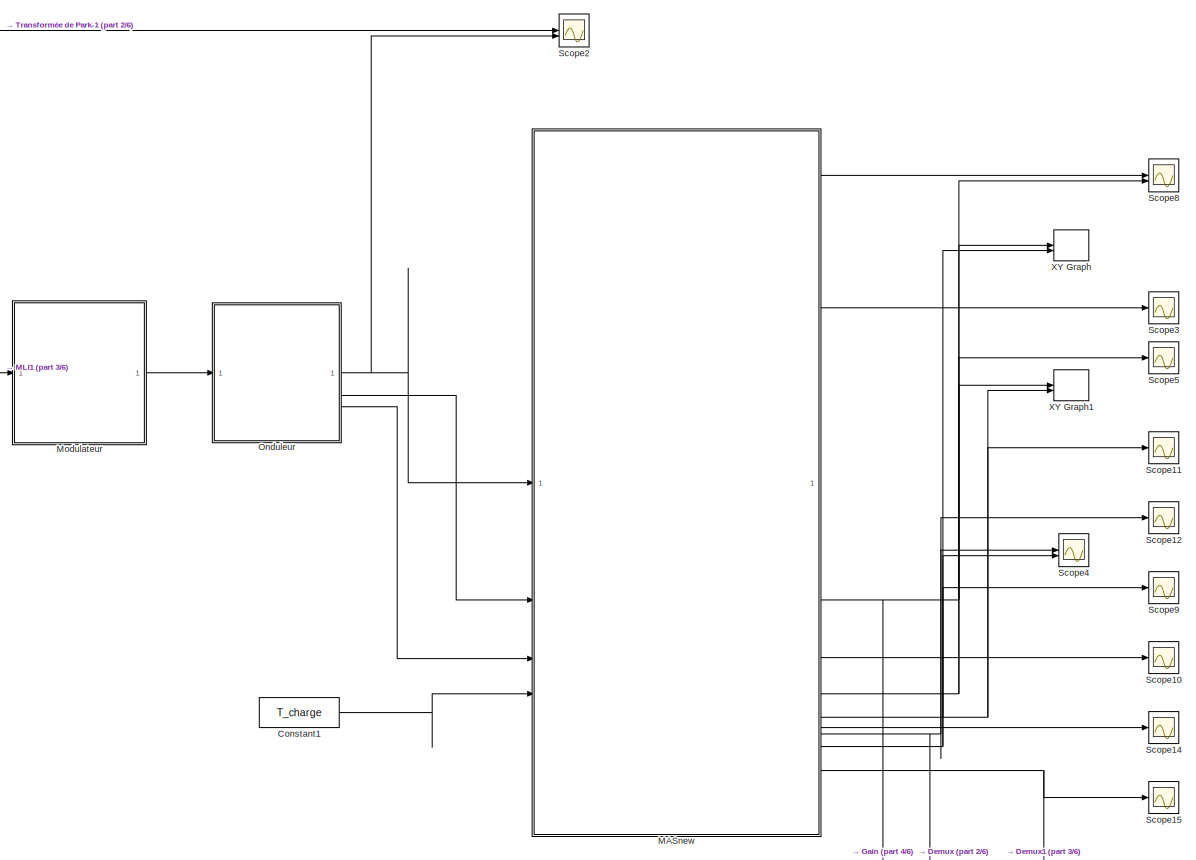
[diagram: root canvas - part 1/6, top right region]
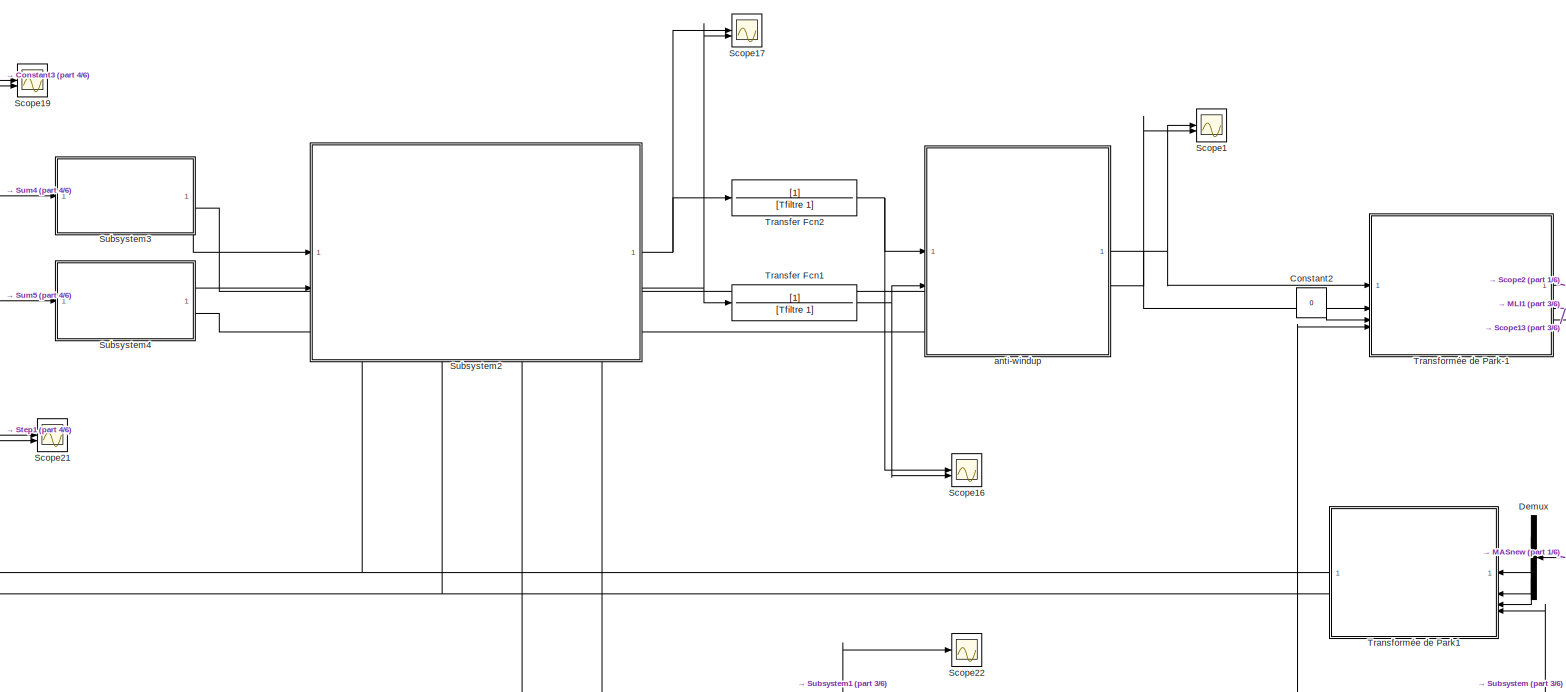
[diagram: root canvas - part 2/6, top center region]
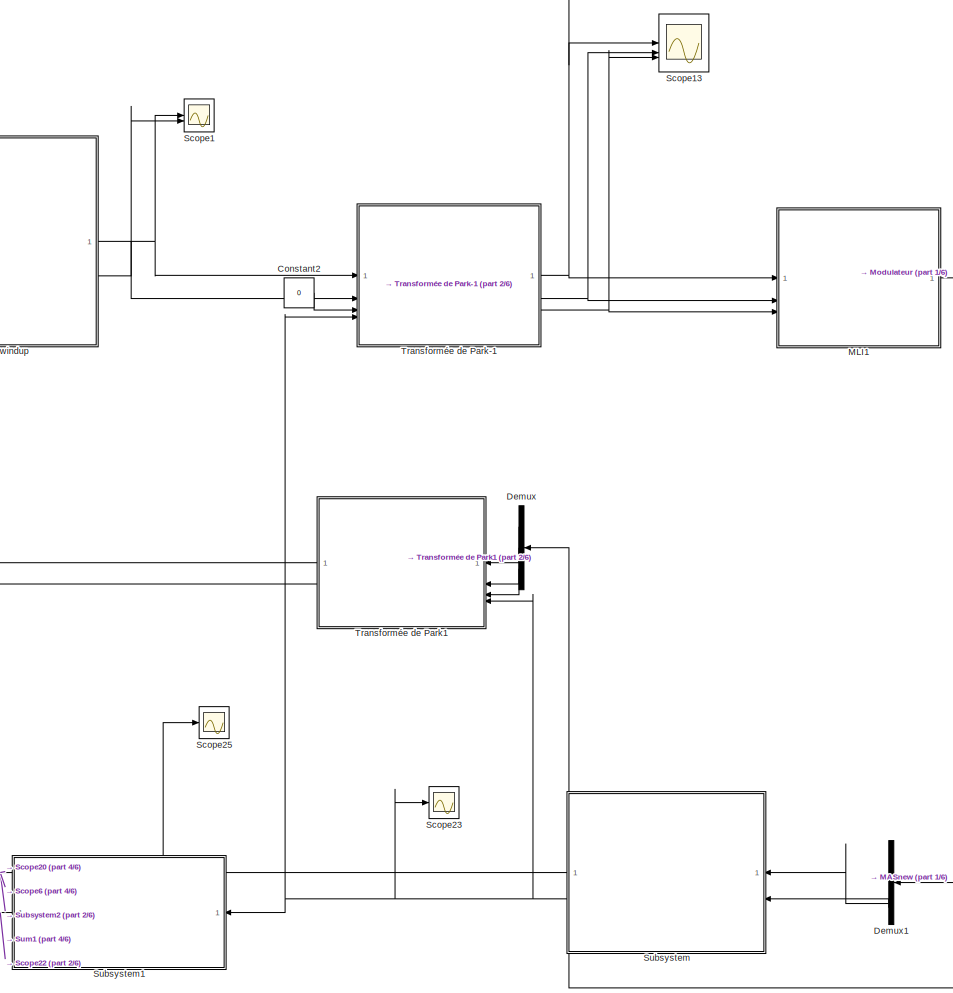
[diagram: root canvas - part 3/6, top center region]
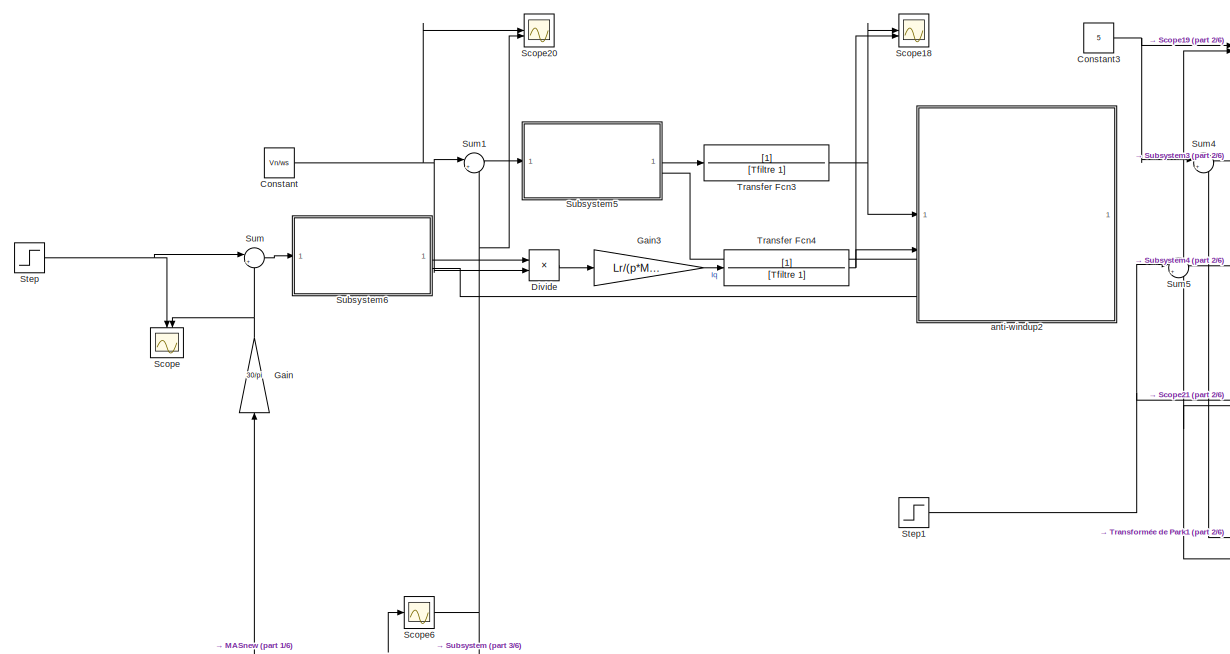
[diagram: root canvas - part 4/6, top left region]
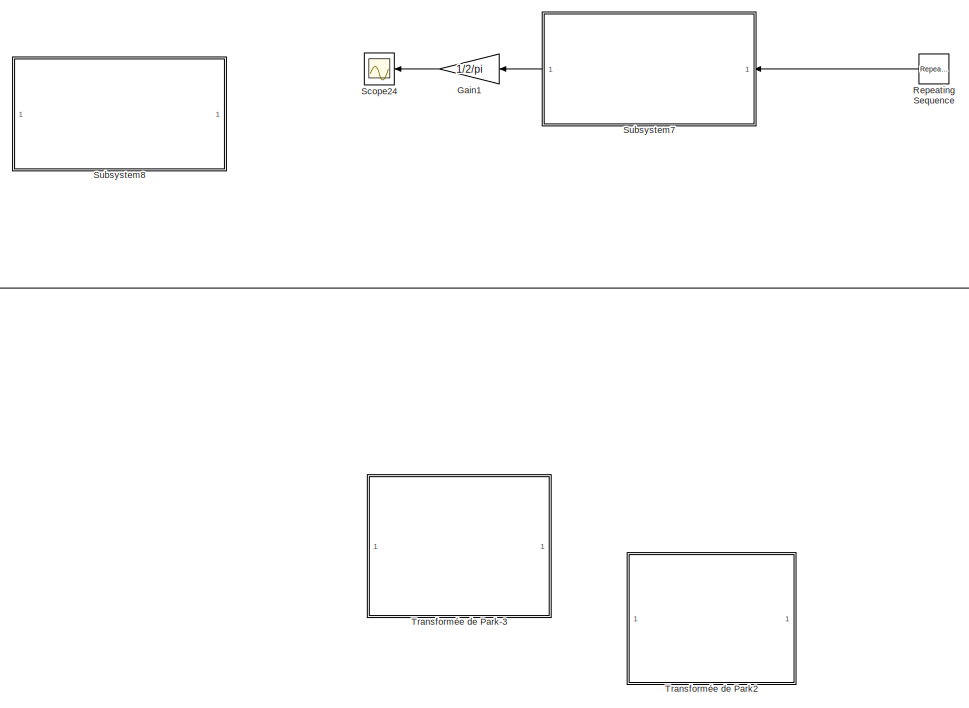
[diagram: root canvas - part 5/6, bottom center region]
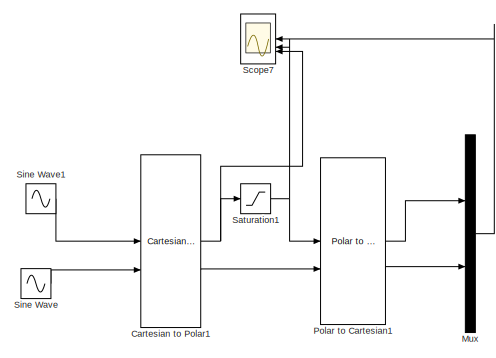
[diagram: root canvas - part 6/6, bottom left region]
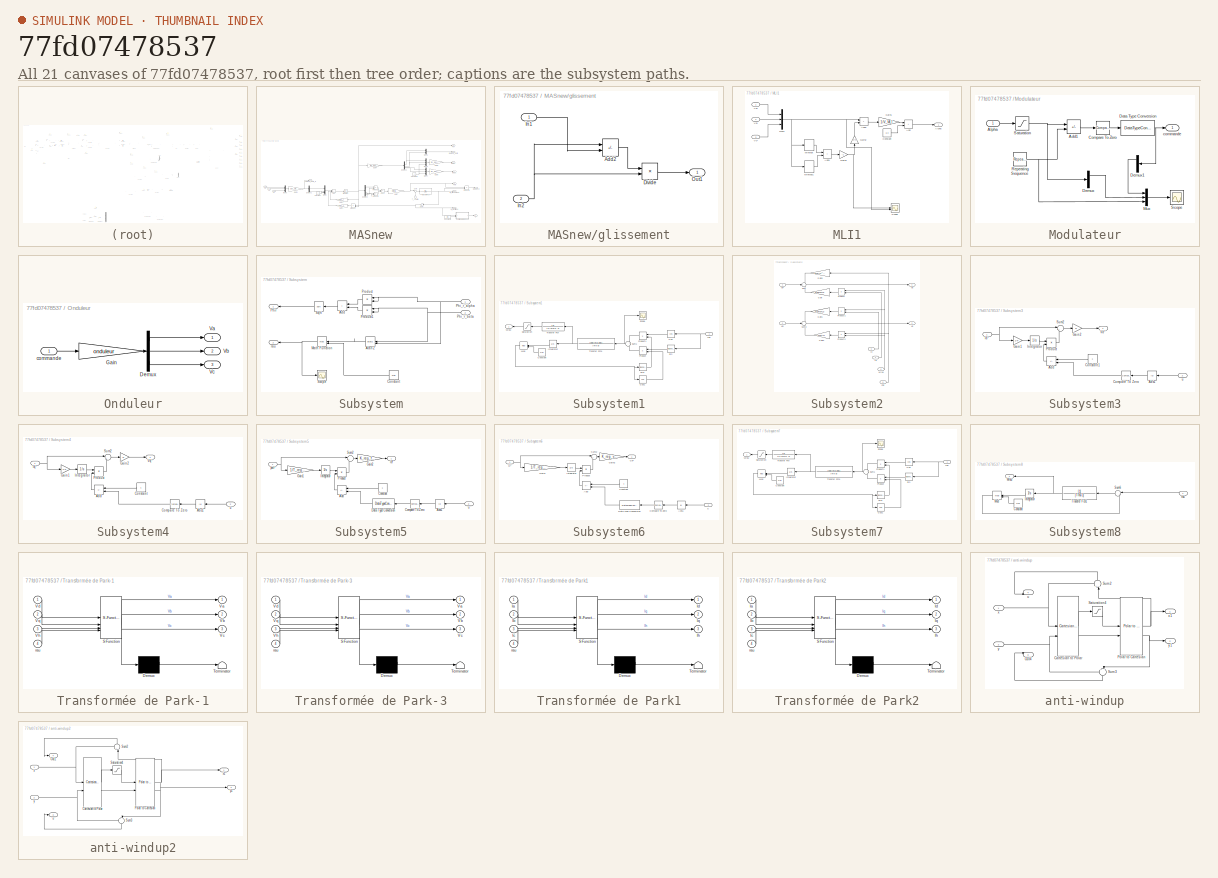
[diagram: thumbnail index - all 21 canvases of the model, root first then tree order]
MODEL slx_77fd07478537
KIND model
CONFIG AbsTol = auto
CONFIG EnableMultiTasking = off
CONFIG FixedStep = 1e-6
CONFIG MaxStep = auto
CONFIG MinStep = auto
CONFIG RelTol = 1e-6
CONFIG SampleTimeConstraint = Unconstrained
CONFIG SolverName = ode4
CONFIG StartTime = 0.0
CONFIG StopTime = 1
BLOCK [Reference] Cartesian to Polar1  REF=simulink_extras/Transformations/Cartesian to
Polar
  Commented = on
  SourceBlock = simulink_extras/Transformations/Cartesian to\nPolar
  SourceType = Cart2Polar
BLOCK [Constant] Constant
  Value = Vn/ws
BLOCK [Constant] Constant1
  Value = T_charge
BLOCK [Constant] Constant2
  Value = 0
BLOCK [Constant] Constant3
  Value = 5
BLOCK [Demux] Demux
  NameLocation = top
  Outputs = 3
BLOCK [Demux] Demux1
  NameLocation = top
BLOCK [Product] Divide
  Inputs = */
BLOCK [Gain] Gain
  Gain = 30/pi
  NameLocation = right
BLOCK [Gain] Gain1
  Gain = 1/2/pi
  NameLocation = top
BLOCK [Gain] Gain3
  Gain = Lr/(p*Msr)
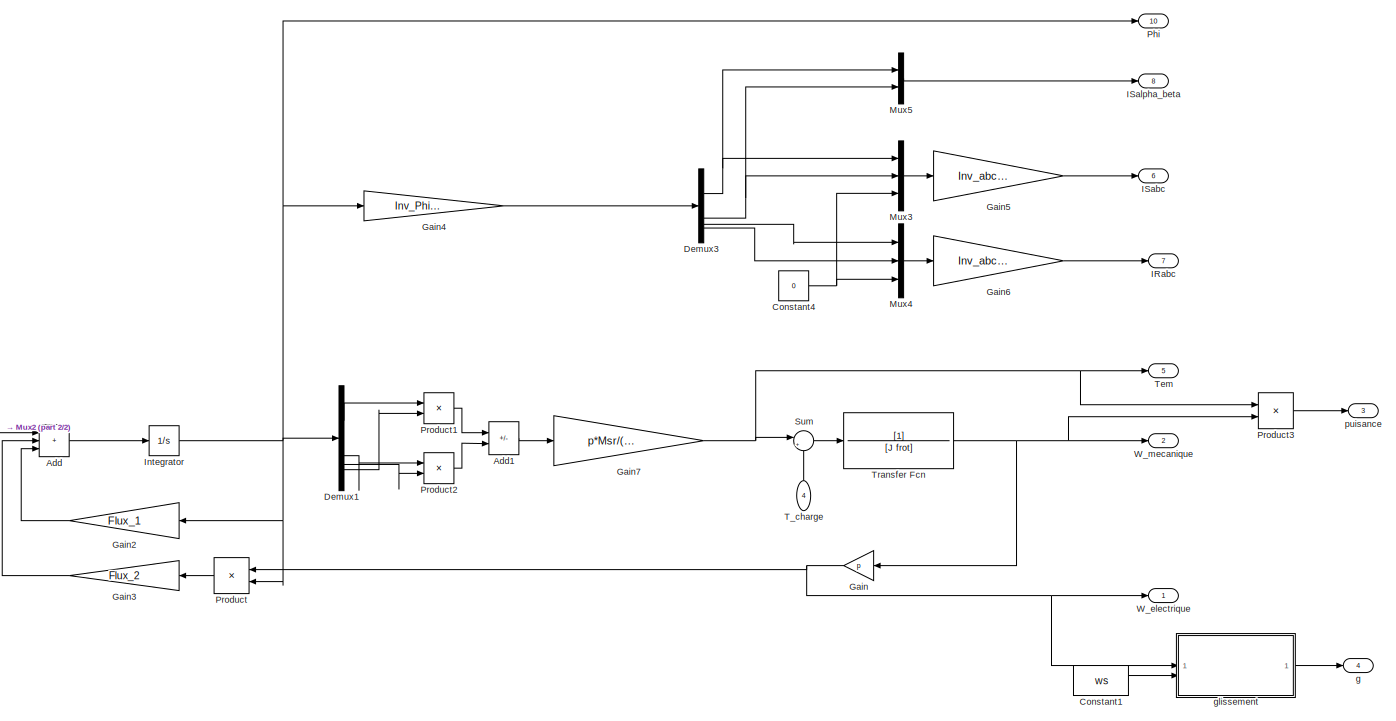
[diagram: MASnew - part 1/2, center side, full height]
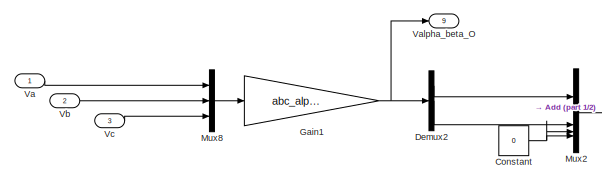
[diagram: MASnew - part 2/2, middle left region]
BLOCK [SubSystem] MASnew
BLOCK [Sum] MASnew/Add
  IconShape = rectangular
  Inputs = +++
BLOCK [Sum] MASnew/Add1
  IconShape = rectangular
  Inputs = +-
BLOCK [Constant] MASnew/Constant
  Value = 0
BLOCK [Constant] MASnew/Constant1
  Value = ws
BLOCK [Constant] MASnew/Constant4
  Value = 0
BLOCK [Demux] MASnew/Demux1
BLOCK [Demux] MASnew/Demux2
  Outputs = 3
BLOCK [Demux] MASnew/Demux3
BLOCK [Gain] MASnew/Gain
  Gain = p
  NameLocation = top
BLOCK [Gain] MASnew/Gain1
  Gain = abc_alpha_beta
  Multiplication = Matrix(K*u)
BLOCK [Gain] MASnew/Gain2
  Gain = Flux_1
  Multiplication = Matrix(K*u)
  NameLocation = top
BLOCK [Gain] MASnew/Gain3
  Gain = Flux_2
  Multiplication = Matrix(K*u)
  NameLocation = top
BLOCK [Gain] MASnew/Gain4
  Gain = Inv_Phi_Courant
  Multiplication = Matrix(K*u)
BLOCK [Gain] MASnew/Gain5
  Gain = Inv_abc_alpha_beta
  Multiplication = Matrix(K*u)
BLOCK [Gain] MASnew/Gain6
  Gain = Inv_abc_alpha_beta
  Multiplication = Matrix(K*u)
BLOCK [Gain] MASnew/Gain7
  Gain = p*Msr/(Msr^2 - Lr*Ls)
BLOCK [Outport] MASnew/IRabc
  Port = 7
BLOCK [Outport] MASnew/ISabc
  Port = 6
BLOCK [Outport] MASnew/ISalpha_beta
  Port = 8
BLOCK [Integrator] MASnew/Integrator
BLOCK [Mux] MASnew/Mux2
  DisplayOption = bar
BLOCK [Mux] MASnew/Mux3
  DisplayOption = bar
  Inputs = 3
BLOCK [Mux] MASnew/Mux4
  DisplayOption = bar
  Inputs = 3
BLOCK [Mux] MASnew/Mux5
  DisplayOption = bar
  Inputs = 2
BLOCK [Mux] MASnew/Mux8
  DisplayOption = bar
  Inputs = 3
BLOCK [Outport] MASnew/Phi
  Port = 10
BLOCK [Product] MASnew/Product
  NameLocation = top
BLOCK [Product] MASnew/Product1
BLOCK [Product] MASnew/Product2
BLOCK [Product] MASnew/Product3
BLOCK [Sum] MASnew/Sum
  Inputs = |+-
BLOCK [Inport] MASnew/T_charge
  NameLocation = right
  Port = 4
BLOCK [Outport] MASnew/Tem
  Port = 5
BLOCK [TransferFcn] MASnew/Transfer Fcn
  Denominator = [J frot]
BLOCK [Inport] MASnew/Va
BLOCK [Outport] MASnew/Valpha_beta_O
  Port = 9
BLOCK [Inport] MASnew/Vb
  Port = 2
BLOCK [Inport] MASnew/Vc
  Port = 3
BLOCK [Outport] MASnew/W_electrique
BLOCK [Outport] MASnew/W_mecanique
  Port = 2
BLOCK [Outport] MASnew/g
  Port = 4
BLOCK [SubSystem] MASnew/glissement
BLOCK [Sum] MASnew/glissement/Add2
  IconShape = rectangular
  Inputs = +-
BLOCK [Product] MASnew/glissement/Divide
  Inputs = */
BLOCK [Inport] MASnew/glissement/In1
BLOCK [Inport] MASnew/glissement/In2
  Port = 2
BLOCK [Outport] MASnew/glissement/Out1
BLOCK [Outport] MASnew/puisance
  Port = 3
BLOCK [SubSystem] MLI1
BLOCK [Sum] MLI1/Add
  IconShape = rectangular
BLOCK [Sum] MLI1/Add1
  IconShape = rectangular
BLOCK [Sum] MLI1/Add2
  IconShape = rectangular
BLOCK [Outport] MLI1/Alpha
BLOCK [Constant] MLI1/Constant
  Value = 1/2
BLOCK [Gain] MLI1/Gain1
  Gain = 1/V_MLI
BLOCK [Gain] MLI1/Gain2
  Gain = 1/2
  NameLocation = right
BLOCK [Gain] MLI1/Gain3
  Gain = -1
BLOCK [MinMax] MLI1/MinMax
BLOCK [MinMax] MLI1/MinMax1
  Function = max
BLOCK [Mux] MLI1/Mux1
  DisplayOption = bar
  Inputs = 3
BLOCK [Scope] MLI1/Scope
  Floating = off
  NumInputPorts = 2
  ScopeSpecificationString = Simulink.scopes.TimeScopeBlockCfg('CurrentConfiguration', extmgr.ConfigurationSet(extmgr.Configuration('Core','General UI',true),extmgr.Configuration('Core','Source UI',true),extmgr.Configuration('Sources','WiredSimulink',true,'DataLoggingVariableName','ScopeData4'),extmgr.Configuration('Visuals','Time Domain',true,'SerializedDisplays',{struct('MinYLimReal','-298.12162','MaxYLimReal','263.83936','...<+1568ch>
BLOCK [Inport] MLI1/Va*
BLOCK [Inport] MLI1/Vb*
  Port = 2
BLOCK [Inport] MLI1/Vc*
  Port = 3
BLOCK [SubSystem] Modulateur
BLOCK [Sum] Modulateur/Add1
  IconShape = rectangular
  Inputs = +-
BLOCK [Inport] Modulateur/Alpha
BLOCK [Reference] Modulateur/Compare To Zero  REF=hdlsllib/Logic and Bit
Operations/Compare
To Zero
  SourceBlock = hdlsllib/Logic and Bit\nOperations/Compare\nTo Zero
  SourceType = Compare To Zero
BLOCK [DataTypeConversion] Modulateur/Data Type Conversion
  RndMeth = Floor
  SaturateOnIntegerOverflow = off
BLOCK [Demux] Modulateur/Demux
  Outputs = 3
BLOCK [Demux] Modulateur/Demux1
  NameLocation = top
  Outputs = 3
BLOCK [Mux] Modulateur/Mux
  DisplayOption = bar
  Inputs = 3
BLOCK [Reference] Modulateur/Repeating Sequence  REF=simulink/Sources/Repeating
Sequence
  SourceBlock = simulink/Sources/Repeating\nSequence
  SourceType = Repeating table
BLOCK [Saturate] Modulateur/Saturation
  LowerLimit = 0
  UpperLimit = 1
BLOCK [Scope] Modulateur/Scope
  Floating = off
  NumInputPorts = 1
  ScopeSpecificationString = Simulink.scopes.TimeScopeBlockCfg('CurrentConfiguration', extmgr.ConfigurationSet(extmgr.Configuration('Core','General UI',true),extmgr.Configuration('Core','Source UI',true),extmgr.Configuration('Sources','WiredSimulink',true,'DataLoggingVariableName','ScopeData1'),extmgr.Configuration('Visuals','Time Domain',true),extmgr.Configuration('Tools','Plot Navigation',true),extmgr.Configuration('Tools',...<+40ch>
BLOCK [Outport] Modulateur/commande
BLOCK [Mux] Mux
  Commented = on
  DisplayOption = bar
  Inputs = 2
BLOCK [SubSystem] Onduleur
BLOCK [Demux] Onduleur/Demux
  Outputs = 3
BLOCK [Gain] Onduleur/Gain
  Gain = onduleur
  Multiplication = Matrix(K*u)
BLOCK [Outport] Onduleur/Va
BLOCK [Outport] Onduleur/Vb
  Port = 2
BLOCK [Outport] Onduleur/Vc
  Port = 3
BLOCK [Inport] Onduleur/commande
BLOCK [Reference] Polar to Cartesian1  REF=simulink_extras/Transformations/Polar to
Cartesian
  Commented = on
  SourceBlock = simulink_extras/Transformations/Polar to\nCartesian
  SourceType = Polar2Cart
BLOCK [Reference] Repeating Sequence  REF=simulink/Sources/Repeating
Sequence
  NameLocation = top
  SourceBlock = simulink/Sources/Repeating\nSequence
  SourceType = Repeating table
BLOCK [Saturate] Saturation1
  Commented = on
  LowerLimit = -sqrt(3/2)*Vn
  UpperLimit = 215
BLOCK [Scope] Scope
  Floating = off
  NameLocation = left
  NumInputPorts = 2
  ScopeSpecificationString = Simulink.scopes.TimeScopeBlockCfg('CurrentConfiguration', extmgr.ConfigurationSet(extmgr.Configuration('Core','General UI',true),extmgr.Configuration('Core','Source UI',true),extmgr.Configuration('Sources','WiredSimulink',true,'DataLoggingVariableName','ScopeData2'),extmgr.Configuration('Visuals','Time Domain',true,'SerializedDisplays',{struct('MinYLimReal','-44.82733','MaxYLimReal','112.27782','Y...<+1451ch>
BLOCK [Scope] Scope1
  Floating = off
  NumInputPorts = 2
  ScopeSpecificationString = Simulink.scopes.TimeScopeBlockCfg('CurrentConfiguration', extmgr.ConfigurationSet(extmgr.Configuration('Core','General UI',true),extmgr.Configuration('Core','Source UI',true),extmgr.Configuration('Sources','WiredSimulink',true,'DataLoggingVariableName','ScopeData3'),extmgr.Configuration('Visuals','Time Domain',true,'SerializedDisplays',{struct('MinYLimReal','-302.3177','MaxYLimReal','380.00102','Y...<+1446ch>
BLOCK [Scope] Scope10
  Floating = off
  NumInputPorts = 1
  ScopeSpecificationString = Simulink.scopes.TimeScopeBlockCfg('CurrentConfiguration', extmgr.ConfigurationSet(extmgr.Configuration('Core','General UI',true),extmgr.Configuration('Core','Source UI',true),extmgr.Configuration('Sources','WiredSimulink',true,'DataLoggingVariableName','ScopeData6'),extmgr.Configuration('Visuals','Time Domain',true,'SerializedDisplays',{struct('MinYLimReal','-1.00000','MaxYLimReal','1.00000','YLab...<+1411ch>
BLOCK [Scope] Scope11
  Floating = off
  NumInputPorts = 1
  ScopeSpecificationString = Simulink.scopes.TimeScopeBlockCfg('CurrentConfiguration', extmgr.ConfigurationSet(extmgr.Configuration('Core','General UI',true),extmgr.Configuration('Core','Source UI',true),extmgr.Configuration('Sources','WiredSimulink',true,'DataLoggingVariableName','ScopeData7'),extmgr.Configuration('Visuals','Time Domain',true,'SerializedDisplays',{struct('MinYLimReal','-1.00000','MaxYLimReal','1.00000','YLab...<+1440ch>
BLOCK [Scope] Scope12
  Floating = off
  NumInputPorts = 1
  ScopeSpecificationString = Simulink.scopes.TimeScopeBlockCfg('CurrentConfiguration', extmgr.ConfigurationSet(extmgr.Configuration('Core','General UI',true),extmgr.Configuration('Core','Source UI',true),extmgr.Configuration('Sources','WiredSimulink',true,'DataLoggingVariableName','ScopeData8'),extmgr.Configuration('Visuals','Time Domain',true,'SerializedDisplays',{struct('MinYLimReal','-10.4109','MaxYLimReal','10.39966','YLa...<+1534ch>
BLOCK [Scope] Scope13
  Floating = off
  NumInputPorts = 3
  ScopeSpecificationString = Simulink.scopes.TimeScopeBlockCfg('CurrentConfiguration', extmgr.ConfigurationSet(extmgr.Configuration('Core','General UI',true),extmgr.Configuration('Core','Source UI',true),extmgr.Configuration('Sources','WiredSimulink',true,'DataLoggingVariableName','ScopeData9'),extmgr.Configuration('Visuals','Time Domain',true,'SerializedDisplays',{struct('MinYLimReal','-671.75144','MaxYLimReal','671.75144','...<+1523ch>
BLOCK [Scope] Scope14
  Floating = off
  NumInputPorts = 1
  ScopeSpecificationString = Simulink.scopes.TimeScopeBlockCfg('CurrentConfiguration', extmgr.ConfigurationSet(extmgr.Configuration('Core','General UI',true),extmgr.Configuration('Core','Source UI',true),extmgr.Configuration('Sources','WiredSimulink',true,'DataLoggingVariableName','ScopeData10'),extmgr.Configuration('Visuals','Time Domain',true,'SerializedDisplays',{struct('MinYLimReal','-581.75381','MaxYLimReal','581.75381',...<+1458ch>
BLOCK [Scope] Scope15
  Floating = off
  NumInputPorts = 1
  ScopeSpecificationString = Simulink.scopes.TimeScopeBlockCfg('CurrentConfiguration', extmgr.ConfigurationSet(extmgr.Configuration('Core','General UI',true),extmgr.Configuration('Core','Source UI',true),extmgr.Configuration('Sources','WiredSimulink',true,'DataLoggingVariableName','ScopeData11'),extmgr.Configuration('Visuals','Time Domain',true,'SerializedDisplays',{struct('MinYLimReal','-1.47302','MaxYLimReal','1.4736','YLab...<+1478ch>
BLOCK [Scope] Scope16
  Floating = off
  NumInputPorts = 2
  ScopeSpecificationString = Simulink.scopes.TimeScopeBlockCfg('CurrentConfiguration', extmgr.ConfigurationSet(extmgr.Configuration('Core','General UI',true),extmgr.Configuration('Core','Source UI',true),extmgr.Configuration('Sources','WiredSimulink',true,'DataLoggingVariableName','ScopeData2'),extmgr.Configuration('Visuals','Time Domain',true,'SerializedDisplays',{struct('MinYLimReal','-52.83846','MaxYLimReal','244.4312','YL...<+1472ch>
BLOCK [Scope] Scope17
  Floating = off
  NumInputPorts = 2
  ScopeSpecificationString = Simulink.scopes.TimeScopeBlockCfg('CurrentConfiguration', extmgr.ConfigurationSet(extmgr.Configuration('Core','General UI',true),extmgr.Configuration('Core','Source UI',true),extmgr.Configuration('Sources','WiredSimulink',true,'DataLoggingVariableName','ScopeData3'),extmgr.Configuration('Visuals','Time Domain',true,'SerializedDisplays',{struct('MinYLimReal','-385.32835','MaxYLimReal','380.6893','Y...<+1558ch>
BLOCK [Scope] Scope18
  Floating = off
  NumInputPorts = 2
  ScopeSpecificationString = Simulink.scopes.TimeScopeBlockCfg('CurrentConfiguration', extmgr.ConfigurationSet(extmgr.Configuration('Core','General UI',true),extmgr.Configuration('Core','Source UI',true),extmgr.Configuration('Sources','WiredSimulink',true,'DataLoggingVariableName','ScopeData4'),extmgr.Configuration('Visuals','Time Domain',true,'SerializedDisplays',{struct('MinYLimReal','-48173.15543','MaxYLimReal','429741.775...<+1544ch>
BLOCK [Scope] Scope19
  Floating = off
  NumInputPorts = 2
  ScopeSpecificationString = Simulink.scopes.TimeScopeBlockCfg('CurrentConfiguration', extmgr.ConfigurationSet(extmgr.Configuration('Core','General UI',true),extmgr.Configuration('Core','Source UI',true),extmgr.Configuration('Sources','WiredSimulink',true,'DataLoggingVariableName','ScopeData5'),extmgr.Configuration('Visuals','Time Domain',true,'SerializedDisplays',{struct('MinYLimReal','-3.47516','MaxYLimReal','31.2764','YLab...<+1465ch>
BLOCK [Scope] Scope2
  Floating = off
  NumInputPorts = 2
  ScopeSpecificationString = Simulink.scopes.TimeScopeBlockCfg('CurrentConfiguration', extmgr.ConfigurationSet(extmgr.Configuration('Core','General UI',true),extmgr.Configuration('Core','Source UI',true),extmgr.Configuration('Sources','WiredSimulink',true,'DataLoggingVariableName','ScopeData12'),extmgr.Configuration('Visuals','Time Domain',true,'SerializedDisplays',{struct('MinYLimReal','-45.00000','MaxYLimReal','405.00000','...<+1454ch>
BLOCK [Scope] Scope20
  Floating = off
  NumInputPorts = 2
  ScopeSpecificationString = Simulink.scopes.TimeScopeBlockCfg('CurrentConfiguration', extmgr.ConfigurationSet(extmgr.Configuration('Core','General UI',true),extmgr.Configuration('Core','Source UI',true),extmgr.Configuration('Sources','WiredSimulink',true,'DataLoggingVariableName','ScopeData6'),extmgr.Configuration('Visuals','Time Domain',true,'SerializedDisplays',{struct('MinYLimReal','-0.17702','MaxYLimReal','1.59315','YLab...<+1543ch>
BLOCK [Scope] Scope21
  Floating = off
  NumInputPorts = 2
  ScopeSpecificationString = Simulink.scopes.TimeScopeBlockCfg('CurrentConfiguration', extmgr.ConfigurationSet(extmgr.Configuration('Core','General UI',true),extmgr.Configuration('Core','Source UI',true),extmgr.Configuration('Sources','WiredSimulink',true,'DataLoggingVariableName','ScopeData2'),extmgr.Configuration('Visuals','Time Domain',true,'SerializedDisplays',{struct('MinYLimReal','-8.03053','MaxYLimReal','22.53106','YLa...<+1491ch>
BLOCK [Scope] Scope22
  Floating = off
  NumInputPorts = 2
  ScopeSpecificationString = Simulink.scopes.TimeScopeBlockCfg('CurrentConfiguration', extmgr.ConfigurationSet(extmgr.Configuration('Core','General UI',true),extmgr.Configuration('Core','Source UI',true),extmgr.Configuration('Sources','WiredSimulink',true,'DataLoggingVariableName','ScopeData3'),extmgr.Configuration('Visuals','Time Domain',true,'SerializedDisplays',{struct('MinYLimReal','-39.53263','MaxYLimReal','368.89692','Y...<+1491ch>
BLOCK [Scope] Scope23
  Floating = off
  NumInputPorts = 1
  ScopeSpecificationString = Simulink.scopes.TimeScopeBlockCfg('CurrentConfiguration', extmgr.ConfigurationSet(extmgr.Configuration('Core','General UI',true),extmgr.Configuration('Core','Source UI',true),extmgr.Configuration('Sources','WiredSimulink',true,'DataLoggingVariableName','ScopeData1'),extmgr.Configuration('Visuals','Time Domain',true,'SerializedDisplays',{struct('MinYLimReal','-0.7854','MaxYLimReal','7.06858','YLabe...<+1368ch>
BLOCK [Scope] Scope24
  Floating = off
  NameLocation = top
  NumInputPorts = 1
  ScopeSpecificationString = Simulink.scopes.TimeScopeBlockCfg('CurrentConfiguration', extmgr.ConfigurationSet(extmgr.Configuration('Core','General UI',true),extmgr.Configuration('Core','Source UI',true),extmgr.Configuration('Sources','WiredSimulink',true,'DataLoggingVariableName','ScopeData2'),extmgr.Configuration('Visuals','Time Domain',true,'SerializedDisplays',{struct('MinYLimReal','-35.82255','MaxYLimReal','70.64695','YL...<+1443ch>
BLOCK [Scope] Scope25
  Floating = off
  NumInputPorts = 1
  ScopeSpecificationString = Simulink.scopes.TimeScopeBlockCfg('CurrentConfiguration', extmgr.ConfigurationSet(extmgr.Configuration('Core','General UI',true),extmgr.Configuration('Core','Source UI',true),extmgr.Configuration('Sources','WiredSimulink',true,'DataLoggingVariableName','ScopeData1'),extmgr.Configuration('Visuals','Time Domain',true,'SerializedDisplays',{struct('MinYLimReal','-0.11327','MaxYLimReal','1.01944','YLab...<+1370ch>
BLOCK [Scope] Scope3
  Floating = off
  NumInputPorts = 1
  ScopeSpecificationString = Simulink.scopes.TimeScopeBlockCfg('CurrentConfiguration', extmgr.ConfigurationSet(extmgr.Configuration('Core','General UI',true),extmgr.Configuration('Core','Source UI',true),extmgr.Configuration('Sources','WiredSimulink',true,'DataLoggingVariableName','ScopeData1'),extmgr.Configuration('Visuals','Time Domain',true,'SerializedDisplays',{struct('MinYLimReal','-76571.58981','MaxYLimReal','78803.3588...<+1468ch>
BLOCK [Scope] Scope4
  Floating = off
  NumInputPorts = 2
  ScopeSpecificationString = Simulink.scopes.TimeScopeBlockCfg('CurrentConfiguration', extmgr.ConfigurationSet(extmgr.Configuration('Core','General UI',true),extmgr.Configuration('Core','Source UI',true),extmgr.Configuration('Sources','WiredSimulink',true,'DataLoggingVariableName','ScopeData2'),extmgr.Configuration('Visuals','Time Domain',true,'SerializedDisplays',{struct('MinYLimReal','-113.36239','MaxYLimReal','121.11691','...<+1521ch>
BLOCK [Scope] Scope5
  Floating = off
  NumInputPorts = 1
  ScopeSpecificationString = Simulink.scopes.TimeScopeBlockCfg('CurrentConfiguration', extmgr.ConfigurationSet(extmgr.Configuration('Core','General UI',true),extmgr.Configuration('Core','Source UI',true),extmgr.Configuration('Sources','WiredSimulink',true,'DataLoggingVariableName','ScopeData3'),extmgr.Configuration('Visuals','Time Domain',true,'SerializedDisplays',{struct('MinYLimReal','-0.22694','MaxYLimReal','1.13633','YLab...<+1438ch>
BLOCK [Scope] Scope6
  Floating = off
  NumInputPorts = 1
  ScopeSpecificationString = Simulink.scopes.TimeScopeBlockCfg('CurrentConfiguration', extmgr.ConfigurationSet(extmgr.Configuration('Core','General UI',true),extmgr.Configuration('Core','Source UI',true),extmgr.Configuration('Sources','WiredSimulink',true,'DataLoggingVariableName','ScopeData1'),extmgr.Configuration('Visuals','Time Domain',true,'SerializedDisplays',{struct('MinYLimReal','-0.17702','MaxYLimReal','1.59315','YLab...<+1494ch>
BLOCK [Scope] Scope7
  Commented = on
  Floating = off
  NameLocation = top
  NumInputPorts = 3
  ScopeSpecificationString = Simulink.scopes.TimeScopeBlockCfg('CurrentConfiguration', extmgr.ConfigurationSet(extmgr.Configuration('Core','General UI',true),extmgr.Configuration('Core','Source UI',true),extmgr.Configuration('Sources','WiredSimulink',true,'DataLoggingVariableName','ScopeData1'),extmgr.Configuration('Visuals','Time Domain',true,'SerializedDisplays',{struct('MinYLimReal','-269.375','MaxYLimReal','274.375','YLab...<+1606ch>
BLOCK [Scope] Scope8
  Floating = off
  NumInputPorts = 2
  ScopeSpecificationString = Simulink.scopes.TimeScopeBlockCfg('CurrentConfiguration', extmgr.ConfigurationSet(extmgr.Configuration('Core','General UI',true),extmgr.Configuration('Core','Source UI',true),extmgr.Configuration('Sources','WiredSimulink',true,'DataLoggingVariableName','ScopeData13'),extmgr.Configuration('Visuals','Time Domain',true,'SerializedDisplays',{struct('MinYLimReal','-56.78212','MaxYLimReal','511.03905','...<+1460ch>
BLOCK [Scope] Scope9
  Floating = off
  NumInputPorts = 1
  ScopeSpecificationString = Simulink.scopes.TimeScopeBlockCfg('CurrentConfiguration', extmgr.ConfigurationSet(extmgr.Configuration('Core','General UI',true),extmgr.Configuration('Core','Source UI',true),extmgr.Configuration('Sources','WiredSimulink',true),extmgr.Configuration('Visuals','Time Domain',true,'SerializedDisplays',{struct('MinYLimReal','-0.97795','MaxYLimReal','1.04187','YLabelReal','','MinYLimMag','0.00000','MaxY...<+1404ch>
BLOCK [Sin] Sine Wave
  Amplitude = 220
  Commented = on
  Frequency = 50*2*pi
  Phase = pi/2
  SampleTime = 0
BLOCK [Sin] Sine Wave1
  Amplitude = 220
  Commented = on
  Frequency = 50*2*pi
  SampleTime = 0
BLOCK [Step] Step
  After = 1450
  SampleTime = 0
  Time = 0.1
BLOCK [Step] Step1
  After = 5
  SampleTime = 0
  Time = 0.3
BLOCK [SubSystem] Subsystem
  NameLocation = top
BLOCK [Sum] Subsystem/Add
  IconShape = rectangular
  NameLocation = top
BLOCK [Trigonometry] Subsystem/Atan2
  NameLocation = top
  Operator = atan2
BLOCK [Constant] Subsystem/Constant
  NameLocation = top
  Value = 2*pi
BLOCK [Math] Subsystem/Math Function
  NameLocation = top
  Operator = mod
BLOCK [Inport] Subsystem/Phi_r_alpha
BLOCK [Inport] Subsystem/Phi_r_beta
  Port = 2
BLOCK [Outport] Subsystem/Phir
  NameLocation = top
BLOCK [Product] Subsystem/Product
  NameLocation = top
BLOCK [Product] Subsystem/Product1
  NameLocation = top
BLOCK [Scope] Subsystem/Scope
  Floating = off
  NumInputPorts = 1
  ScopeSpecificationString = Simulink.scopes.TimeScopeBlockCfg('CurrentConfiguration', extmgr.ConfigurationSet(extmgr.Configuration('Core','General UI',true),extmgr.Configuration('Core','Source UI',true),extmgr.Configuration('Sources','WiredSimulink',true,'DataLoggingVariableName','ScopeData1'),extmgr.Configuration('Visuals','Time Domain',true,'SerializedDisplays',{struct('MinYLimReal','-0.78539','MaxYLimReal','7.06855','YLab...<+1399ch>
BLOCK [Sqrt] Subsystem/Sqrt
  NameLocation = top
BLOCK [Outport] Subsystem/rau
  NameLocation = top
  Port = 2
BLOCK [SubSystem] Subsystem1
  NameLocation = top
BLOCK [Constant] Subsystem1/Constant
  NameLocation = top
  Value = 2*pi
BLOCK [Trigonometry] Subsystem1/Cos
  NameLocation = top
  Operator = cos
BLOCK [Trigonometry] Subsystem1/Cos1
  Operator = cos
BLOCK [Integrator] Subsystem1/Integrator
  NameLocation = top
BLOCK [Math] Subsystem1/Mod
  NameLocation = top
  Operator = mod
BLOCK [Product] Subsystem1/Product
  NameLocation = top
BLOCK [Product] Subsystem1/Product1
  NameLocation = top
BLOCK [Saturate] Subsystem1/Saturation
  LowerLimit = -1.2*ws
  NameLocation = top
  UpperLimit = 1.2*ws
BLOCK [Scope] Subsystem1/Scope
  Floating = off
  NumInputPorts = 1
  ScopeSpecificationString = Simulink.scopes.TimeScopeBlockCfg('CurrentConfiguration', extmgr.ConfigurationSet(extmgr.Configuration('Core','General UI',true),extmgr.Configuration('Core','Source UI',true),extmgr.Configuration('Sources','WiredSimulink',true,'DataLoggingVariableName','ScopeData3'),extmgr.Configuration('Visuals','Time Domain',true,'SerializedDisplays',{struct('MinYLimReal','-1.18401','MaxYLimReal','0.65612','YLab...<+1411ch>
BLOCK [Trigonometry] Subsystem1/Sin
  NameLocation = top
BLOCK [Trigonometry] Subsystem1/Sin1
BLOCK [Sum] Subsystem1/Sum1
  Inputs = +|-
  NameLocation = top
BLOCK [TransferFcn] Subsystem1/Transfer Fcn
  Denominator = [1/(3*ws) 1]
  NameLocation = top
BLOCK [TransferFcn] Subsystem1/Transfer Fcn1
  Denominator = [Tin 0]
  NameLocation = top
  Numerator = [Kpi*Tin Kpi]
BLOCK [Outport] Subsystem1/Wrau
  NameLocation = top
BLOCK [Inport] Subsystem1/rau
BLOCK [SubSystem] Subsystem2
  PortSchema = {"entries":[{"content":{"sides":[{"content":{"connectorIds":["In1","In2"]},"type":"ConnectorPlacement.EquallySpacedRectSide","uuid":"374a3029-9c19-44eb-9b98-de55e62c7022"},{"content":{"connectorIds":["Out1","Out2"],"side":"RIGHT"},"type":"ConnectorPlacement.EquallySpacedRectSide","uuid":"b066ba17-ce68-41f6-a300-7d3bc4dc3f92"},{"content":{"side":"TOP"},"type":"ConnectorPlacement.EquallySpacedRectSi...<+402ch>
BLOCK [Gain] Subsystem2/Gain
  Gain = sigma*Ls
  NameLocation = top
BLOCK [Gain] Subsystem2/Gain1
  Gain = sigma*Ls
  NameLocation = top
BLOCK [Gain] Subsystem2/Gain2
  Gain = Msr/Lr
  NameLocation = top
BLOCK [Gain] Subsystem2/Gain5
  Gain = Msr/Lr^2*Rr
  NameLocation = top
BLOCK [Inport] Subsystem2/Id
  Port = 3
BLOCK [Inport] Subsystem2/Iq
  Port = 4
BLOCK [Inport] Subsystem2/Phir
  Port = 5
BLOCK [Product] Subsystem2/Product
  NameLocation = top
BLOCK [Product] Subsystem2/Product1
  NameLocation = top
BLOCK [Product] Subsystem2/Product2
  NameLocation = top
BLOCK [Sum] Subsystem2/Sum
  Inputs = +++
BLOCK [Sum] Subsystem2/Sum2
  Inputs = -+-
BLOCK [Outport] Subsystem2/Vd
BLOCK [Inport] Subsystem2/Vd*
BLOCK [Outport] Subsystem2/Vq
  Port = 2
BLOCK [Inport] Subsystem2/Vq*
  Port = 2
BLOCK [Inport] Subsystem2/Wrau
  NameLocation = top
  Port = 6
BLOCK [SubSystem] Subsystem3
  PortSchema = {"entries":[{"content":{"sides":[{"content":{"connectorIds":["In1"]},"type":"ConnectorPlacement.EquallySpacedRectSide","uuid":"e479fa30-fafe-4b33-9f29-bcdfd025492c"},{"content":{"connectorIds":["Out1"],"side":"RIGHT"},"type":"ConnectorPlacement.EquallySpacedRectSide","uuid":"004bb801-1125-495b-9383-1b89d3712869"},{"content":{"connectorIds":["In2"],"side":"TOP"},"type":"ConnectorPlacement.EquallySp...<+245ch>
BLOCK [Abs] Subsystem3/Abs1
  NameLocation = top
  SaturateOnIntegerOverflow = off
BLOCK [Sum] Subsystem3/Add
  IconShape = rectangular
  Inputs = +-
  NameLocation = top
BLOCK [Reference] Subsystem3/Compare To Zero  REF=hdlsllib/Logic and Bit
Operations/Compare
To Zero
  NameLocation = top
  SourceBlock = hdlsllib/Logic and Bit\nOperations/Compare\nTo Zero
  SourceType = Compare To Zero
BLOCK [Constant] Subsystem3/Constant1
  NameLocation = top
BLOCK [Gain] Subsystem3/Gain1
  Gain = 1/Ti
BLOCK [Gain] Subsystem3/Gain2
  Gain = ki
BLOCK [Inport] Subsystem3/Id*
BLOCK [Integrator] Subsystem3/Integrator
BLOCK [Product] Subsystem3/Product
BLOCK [Sum] Subsystem3/Sum2
  Inputs = |++
BLOCK [Outport] Subsystem3/Vd*
BLOCK [Inport] Subsystem3/u
  NameLocation = top
  Port = 2
BLOCK [SubSystem] Subsystem4
  PortSchema = {"entries":[{"content":{"sides":[{"content":{"connectorIds":["In1"]},"type":"ConnectorPlacement.EquallySpacedRectSide","uuid":"b47c6917-9341-4daa-88c1-000b41eb9d38"},{"content":{"connectorIds":["Out1"],"side":"RIGHT"},"type":"ConnectorPlacement.EquallySpacedRectSide","uuid":"db977880-8c33-40fc-933d-e73e745919fc"},{"content":{"side":"TOP"},"type":"ConnectorPlacement.EquallySpacedRectSide","uuid":"c...<+371ch>
BLOCK [Abs] Subsystem4/Abs1
  NameLocation = top
  SaturateOnIntegerOverflow = off
BLOCK [Sum] Subsystem4/Add
  IconShape = rectangular
  Inputs = +-
  NameLocation = top
BLOCK [Reference] Subsystem4/Compare To Zero  REF=hdlsllib/Logic and Bit
Operations/Compare
To Zero
  NameLocation = top
  SourceBlock = hdlsllib/Logic and Bit\nOperations/Compare\nTo Zero
  SourceType = Compare To Zero
BLOCK [Constant] Subsystem4/Constant
  NameLocation = top
BLOCK [Gain] Subsystem4/Gain1
  Gain = 1/Ti
BLOCK [Gain] Subsystem4/Gain2
  Gain = ki
BLOCK [Integrator] Subsystem4/Integrator
BLOCK [Inport] Subsystem4/Iq*
BLOCK [Product] Subsystem4/Product
BLOCK [Sum] Subsystem4/Sum2
  Inputs = |++
BLOCK [Outport] Subsystem4/Vq*
BLOCK [Inport] Subsystem4/u
  NameLocation = top
  Port = 2
BLOCK [SubSystem] Subsystem5
  PortSchema = {"entries":[{"content":{"sides":[{"content":{"connectorIds":["In1"]},"type":"ConnectorPlacement.EquallySpacedRectSide","uuid":"b47c6917-9341-4daa-88c1-000b41eb9d38"},{"content":{"connectorIds":["Out1"],"side":"RIGHT"},"type":"ConnectorPlacement.EquallySpacedRectSide","uuid":"db977880-8c33-40fc-933d-e73e745919fc"},{"content":{"connectorIds":["In2"],"side":"TOP"},"type":"ConnectorPlacement.EquallySp...<+245ch>
BLOCK [Abs] Subsystem5/Abs1
  NameLocation = top
  SaturateOnIntegerOverflow = off
BLOCK [Sum] Subsystem5/Add
  IconShape = rectangular
  Inputs = +-
  NameLocation = top
BLOCK [Reference] Subsystem5/Compare To Zero  REF=hdlsllib/Logic and Bit
Operations/Compare
To Zero
  NameLocation = top
  SourceBlock = hdlsllib/Logic and Bit\nOperations/Compare\nTo Zero
  SourceType = Compare To Zero
BLOCK [Constant] Subsystem5/Constant
  NameLocation = top
BLOCK [DataTypeConversion] Subsystem5/Data Type Conversion
  NameLocation = top
  RndMeth = Floor
  SaturateOnIntegerOverflow = off
BLOCK [Gain] Subsystem5/Gain1
  Gain = 1/T_reg_flux
BLOCK [Gain] Subsystem5/Gain2
  Gain = K_reg_flux
BLOCK [Outport] Subsystem5/Id*
BLOCK [Integrator] Subsystem5/Integrator
BLOCK [Product] Subsystem5/Product
BLOCK [Sum] Subsystem5/Sum2
  Inputs = |++
BLOCK [Inport] Subsystem5/phir*
BLOCK [Inport] Subsystem5/u
  NameLocation = top
  Port = 2
BLOCK [SubSystem] Subsystem6
  PortSchema = {"entries":[{"content":{"sides":[{"content":{"connectorIds":["In1"]},"type":"ConnectorPlacement.EquallySpacedRectSide","uuid":"b47c6917-9341-4daa-88c1-000b41eb9d38"},{"content":{"connectorIds":["Out1"],"side":"RIGHT"},"type":"ConnectorPlacement.EquallySpacedRectSide","uuid":"db977880-8c33-40fc-933d-e73e745919fc"},{"content":{"side":"TOP"},"type":"ConnectorPlacement.EquallySpacedRectSide","uuid":"c...<+371ch>
BLOCK [Abs] Subsystem6/Abs1
  NameLocation = top
  SaturateOnIntegerOverflow = off
BLOCK [Sum] Subsystem6/Add
  IconShape = rectangular
  Inputs = +-
  NameLocation = top
BLOCK [Outport] Subsystem6/Ce*
BLOCK [Reference] Subsystem6/Compare To Zero  REF=hdlsllib/Logic and Bit
Operations/Compare
To Zero
  NameLocation = top
  SourceBlock = hdlsllib/Logic and Bit\nOperations/Compare\nTo Zero
  SourceType = Compare To Zero
BLOCK [Constant] Subsystem6/Constant
  NameLocation = top
BLOCK [DataTypeConversion] Subsystem6/Data Type Conversion
  NameLocation = top
  RndMeth = Floor
  SaturateOnIntegerOverflow = off
BLOCK [Gain] Subsystem6/Gain1
  Gain = 1/T_reg_vitesse
BLOCK [Gain] Subsystem6/Gain2
  Gain = K_reg_vitesse
BLOCK [Integrator] Subsystem6/Integrator
BLOCK [Product] Subsystem6/Product
BLOCK [Sum] Subsystem6/Sum2
  Inputs = |++
BLOCK [Inport] Subsystem6/u
  NameLocation = top
  Port = 2
BLOCK [Inport] Subsystem6/w*
BLOCK [SubSystem] Subsystem7
  NameLocation = top
BLOCK [Constant] Subsystem7/Constant
  NameLocation = top
  Value = 2*pi
BLOCK [Trigonometry] Subsystem7/Cos
  NameLocation = top
  Operator = cos
BLOCK [Trigonometry] Subsystem7/Cos1
  Operator = cos
BLOCK [Integrator] Subsystem7/Integrator
  NameLocation = top
BLOCK [Math] Subsystem7/Mod
  NameLocation = top
  Operator = mod
BLOCK [Product] Subsystem7/Product
  NameLocation = top
BLOCK [Product] Subsystem7/Product1
  NameLocation = top
BLOCK [Saturate] Subsystem7/Saturation
  LowerLimit = -1.2*ws
  NameLocation = top
  UpperLimit = 1.2*ws
BLOCK [Scope] Subsystem7/Scope
  Floating = off
  NumInputPorts = 1
  ScopeSpecificationString = Simulink.scopes.TimeScopeBlockCfg('CurrentConfiguration', extmgr.ConfigurationSet(extmgr.Configuration('Core','General UI',true),extmgr.Configuration('Core','Source UI',true),extmgr.Configuration('Sources','WiredSimulink',true,'DataLoggingVariableName','ScopeData3'),extmgr.Configuration('Visuals','Time Domain',true,'SerializedDisplays',{struct('MinYLimReal','-1.18401','MaxYLimReal','0.65612','YLab...<+1411ch>
BLOCK [Trigonometry] Subsystem7/Sin
  NameLocation = top
BLOCK [Trigonometry] Subsystem7/Sin1
BLOCK [Sum] Subsystem7/Sum1
  Inputs = +|-
  NameLocation = top
BLOCK [TransferFcn] Subsystem7/Transfer Fcn
  Denominator = [1/(3*ws) 1]
  NameLocation = top
BLOCK [TransferFcn] Subsystem7/Transfer Fcn1
  Denominator = [Tin 0]
  NameLocation = top
  Numerator = [Kpi*Tin Kpi]
BLOCK [Outport] Subsystem7/Wrau
  NameLocation = top
BLOCK [Inport] Subsystem7/rau
BLOCK [SubSystem] Subsystem8
  Commented = on
  NameLocation = top
BLOCK [Constant] Subsystem8/Constant
  NameLocation = top
  Value = 2*pi
BLOCK [Integrator] Subsystem8/Integrator
  NameLocation = top
BLOCK [Math] Subsystem8/Mod
  NameLocation = top
  Operator = mod
BLOCK [Sum] Subsystem8/Sum6
  Inputs = |+-
  NameLocation = top
BLOCK [TransferFcn] Subsystem8/Transfer Fcn1
  Denominator = [Trau 1]
  NameLocation = top
BLOCK [Outport] Subsystem8/Wrau
  NameLocation = top
BLOCK [Inport] Subsystem8/rau
BLOCK [Sum] Sum
  Inputs = |+-
BLOCK [Sum] Sum1
  Inputs = |+-
BLOCK [Sum] Sum4
  Inputs = |+-
BLOCK [Sum] Sum5
  Inputs = |+-
BLOCK [TransferFcn] Transfer Fcn1
  Denominator = [Tfiltre 1]
BLOCK [TransferFcn] Transfer Fcn2
  Denominator = [Tfiltre 1]
BLOCK [TransferFcn] Transfer Fcn3
  Denominator = [Tfiltre 1]
BLOCK [TransferFcn] Transfer Fcn4
  Denominator = [Tfiltre 1]
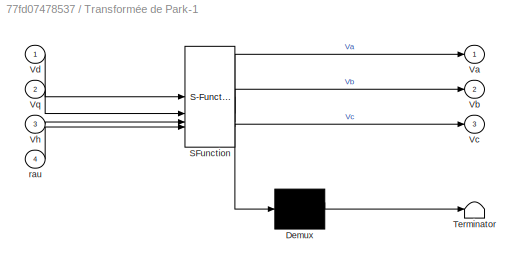
BLOCK [SubSystem] Transformée de Park-1
  ErrorFcn = Stateflow.Translate.translate
  PermitHierarchicalResolution = ExplicitOnly
  SFBlockType = MATLAB Function
  TreatAsAtomicUnit = on
BLOCK [Demux] Transformée de Park-1/ Demux 
  Outputs = 1
BLOCK [S-Function] Transformée de Park-1/ SFunction 
  EnableBusSupport = on
  FunctionName = sf_sfun
  PortCounts = [4 4]
  SFcnIsStateOwnerBlock = off
  SFunctionDeploymentMode = off
  Tag = Stateflow S-Function 1
BLOCK [Terminator] Transformée de Park-1/ Terminator 
BLOCK [Outport] Transformée de Park-1/Va
BLOCK [Outport] Transformée de Park-1/Vb
  Port = 2
BLOCK [Outport] Transformée de Park-1/Vc
  Port = 3
BLOCK [Inport] Transformée de Park-1/Vd
BLOCK [Inport] Transformée de Park-1/Vh
  Port = 3
BLOCK [Inport] Transformée de Park-1/Vq
  Port = 2
BLOCK [Inport] Transformée de Park-1/rau
  Port = 4
BLOCK [SubSystem] Transformée de Park-3
  ErrorFcn = Stateflow.Translate.translate
  PermitHierarchicalResolution = ExplicitOnly
  SFBlockType = MATLAB Function
  TreatAsAtomicUnit = on
BLOCK [Demux] Transformée de Park-3/ Demux 
  Outputs = 1
BLOCK [S-Function] Transformée de Park-3/ SFunction 
  EnableBusSupport = on
  FunctionName = sf_sfun
  PortCounts = [4 4]
  SFcnIsStateOwnerBlock = off
  SFunctionDeploymentMode = off
  Tag = Stateflow S-Function 3
BLOCK [Terminator] Transformée de Park-3/ Terminator 
BLOCK [Outport] Transformée de Park-3/Va
BLOCK [Outport] Transformée de Park-3/Vb
  Port = 2
BLOCK [Outport] Transformée de Park-3/Vc
  Port = 3
BLOCK [Inport] Transformée de Park-3/Vd
BLOCK [Inport] Transformée de Park-3/Vh
  Port = 3
BLOCK [Inport] Transformée de Park-3/Vq
  Port = 2
BLOCK [Inport] Transformée de Park-3/rau
  Port = 4
BLOCK [SubSystem] Transformée de Park1
  ErrorFcn = Stateflow.Translate.translate
  NameLocation = top
  PermitHierarchicalResolution = ExplicitOnly
  SFBlockType = MATLAB Function
  TreatAsAtomicUnit = on
BLOCK [Demux] Transformée de Park1/ Demux 
  Outputs = 1
BLOCK [S-Function] Transformée de Park1/ SFunction 
  EnableBusSupport = on
  FunctionName = sf_sfun
  PortCounts = [4 4]
  SFcnIsStateOwnerBlock = off
  SFunctionDeploymentMode = off
  Tag = Stateflow S-Function 2
BLOCK [Terminator] Transformée de Park1/ Terminator 
BLOCK [Inport] Transformée de Park1/Ia
BLOCK [Inport] Transformée de Park1/Ib
  Port = 2
BLOCK [Inport] Transformée de Park1/Ic
  Port = 3
BLOCK [Outport] Transformée de Park1/Id
BLOCK [Outport] Transformée de Park1/Ih
  Port = 3
BLOCK [Outport] Transformée de Park1/Iq
  Port = 2
BLOCK [Inport] Transformée de Park1/rau
  Port = 4
BLOCK [SubSystem] Transformée de Park2
  ErrorFcn = Stateflow.Translate.translate
  NameLocation = top
  PermitHierarchicalResolution = ExplicitOnly
  SFBlockType = MATLAB Function
  TreatAsAtomicUnit = on
BLOCK [Demux] Transformée de Park2/ Demux 
  Outputs = 1
BLOCK [S-Function] Transformée de Park2/ SFunction 
  EnableBusSupport = on
  FunctionName = sf_sfun
  PortCounts = [4 4]
  SFcnIsStateOwnerBlock = off
  SFunctionDeploymentMode = off
  Tag = Stateflow S-Function 4
BLOCK [Terminator] Transformée de Park2/ Terminator 
BLOCK [Inport] Transformée de Park2/Ia
BLOCK [Inport] Transformée de Park2/Ib
  Port = 2
BLOCK [Inport] Transformée de Park2/Ic
  Port = 3
BLOCK [Outport] Transformée de Park2/Id
BLOCK [Outport] Transformée de Park2/Ih
  Port = 3
BLOCK [Outport] Transformée de Park2/Iq
  Port = 2
BLOCK [Inport] Transformée de Park2/rau
  Port = 4
BLOCK [Record] XY Graph
  CompatibilityTag = XY
  FileSettingsInternal = {"entries":[{"content":{"excelSettings":{"content":{},"type":"Streamout.ExcelSettings"}},"type":"Streamout.FileSettingStorage","uuid":"02bf0144-ef95-4ad2-a42f-d5bcd8c4972b"}],"packageUris":["http://schema.mathworks.com/mf0/streamout_blocks/R2020a"],"version":"1.0"}
  Layout = [1 1]
  SignalsInternal = {"entries":[{"content":{"signals":[{"content":{"blockPath":["MAS_2021/XY Graph"],"dimensions":[1],"domain":"MAS_2021/XY Graph","lineColor":"#a2142f","plots":[1],"port":1,"sid":[""],"signalID":58272,"signalName":"MASnew:2"},"type":"RecordBlkView.Signal","uuid":"b78bae73-59df-4512-bf67-fe98b0d5a5c6"},{"content":{"blockPath":["MAS_2021/XY Graph"],"dimensions":[1],"domain":"MAS_2021/XY Graph","lineCol...<+341ch>
  VisualizationBindings = {"xyplotplugin":{"info":[{"series":[{"bindingParametersList":[{"parameter":"X-Axis","signalID":58272,"signalName":"MASnew:2"},{"parameter":"Y-Axis","signalID":58276,"signalName":"MASnew:5"}],"seriesID":63116}],"subplotID":1}]}}
BLOCK [Record] XY Graph1
  CompatibilityTag = XY
  FileSettingsInternal = {"entries":[{"content":{"excelSettings":{"content":{},"type":"Streamout.ExcelSettings"}},"type":"Streamout.FileSettingStorage","uuid":"62ad68df-1348-4f16-8d4f-e00fc3a6a313"}],"packageUris":["http://schema.mathworks.com/mf0/streamout_blocks/R2020a"],"version":"1.0"}
  Layout = [1 1]
  SignalsInternal = {"entries":[{"content":{"signals":[{"content":{"blockPath":["MAS_2021/XY Graph1"],"dimensions":[1],"domain":"MAS_2021/XY Graph1","lineColor":"#a2142f","plots":[1],"port":1,"sid":[""],"signalID":58280,"signalName":"MASnew:4"},"type":"RecordBlkView.Signal","uuid":"248cccd2-926a-4347-ba54-2025f1e98270"},{"content":{"blockPath":["MAS_2021/XY Graph1"],"dimensions":[1],"domain":"MAS_2021/XY Graph1","lin...<+345ch>
  VisualizationBindings = {"xyplotplugin":{"info":[{"series":[{"bindingParametersList":[{"parameter":"X-Axis","signalID":58280,"signalName":"MASnew:4"},{"parameter":"Y-Axis","signalID":58284,"signalName":"MASnew:5"}],"seriesID":13282}],"subplotID":1}]}}
BLOCK [SubSystem] anti-windup
  PortSchema = {"entries":[{"content":{"sides":[{"content":{"connectorIds":["In1","In2"]},"type":"ConnectorPlacement.EquallySpacedRectSide","uuid":"233cb3cb-1249-40bd-bfdc-45fa9814c46e"},{"content":{"connectorIds":["Out1","Out2"],"side":"RIGHT"},"type":"ConnectorPlacement.EquallySpacedRectSide","uuid":"0fdc860d-9a1f-453b-acef-69f40f5c198e"},{"content":{"connectorIds":["Out4"],"side":"TOP"},"type":"ConnectorPlace...<+409ch>
BLOCK [Reference] anti-windup/Cartesian to Polar  REF=simulink_extras/Transformations/Cartesian to
Polar
  SourceBlock = simulink_extras/Transformations/Cartesian to\nPolar
  SourceType = Cart2Polar
BLOCK [Outport] anti-windup/Out4
  Port = 3
BLOCK [Reference] anti-windup/Polar to Cartesian  REF=simulink_extras/Transformations/Polar to
Cartesian
  SourceBlock = simulink_extras/Transformations/Polar to\nCartesian
  SourceType = Polar2Cart
BLOCK [Saturate] anti-windup/Saturation4
  LowerLimit = 0
  UpperLimit = V_MLI/sqrt(3)
BLOCK [Sum] anti-windup/Sum2
  Inputs = +|-
  NameLocation = right
BLOCK [Sum] anti-windup/Sum3
  Inputs = +|-
  NameLocation = left
BLOCK [Outport] anti-windup/u
  Port = 4
BLOCK [Inport] anti-windup/x
BLOCK [Outport] anti-windup/x1
BLOCK [Inport] anti-windup/y
  Port = 2
BLOCK [Outport] anti-windup/y1
  Port = 2
BLOCK [SubSystem] anti-windup2
  PortSchema = {"entries":[{"content":{"sides":[{"content":{"connectorIds":["In1","In2"]},"type":"ConnectorPlacement.EquallySpacedRectSide","uuid":"233cb3cb-1249-40bd-bfdc-45fa9814c46e"},{"content":{"connectorIds":["Out1","Out2"],"side":"RIGHT"},"type":"ConnectorPlacement.EquallySpacedRectSide","uuid":"0fdc860d-9a1f-453b-acef-69f40f5c198e"},{"content":{"connectorIds":["Out4"],"side":"TOP"},"type":"ConnectorPlace...<+409ch>
BLOCK [Reference] anti-windup2/Cartesian to Polar  REF=simulink_extras/Transformations/Cartesian to
Polar
  SourceBlock = simulink_extras/Transformations/Cartesian to\nPolar
  SourceType = Cart2Polar
BLOCK [Outport] anti-windup2/Out1
  Port = 4
BLOCK [Reference] anti-windup2/Polar to Cartesian  REF=simulink_extras/Transformations/Polar to
Cartesian
  SourceBlock = simulink_extras/Transformations/Polar to\nCartesian
  SourceType = Polar2Cart
BLOCK [Saturate] anti-windup2/Saturation4
  LowerLimit = 0
  UpperLimit = 1.15*In
BLOCK [Sum] anti-windup2/Sum2
  Inputs = +|-
  NameLocation = right
BLOCK [Sum] anti-windup2/Sum3
  Inputs = +|-
  NameLocation = left
BLOCK [Outport] anti-windup2/u
  Port = 3
BLOCK [Inport] anti-windup2/x
BLOCK [Outport] anti-windup2/x1
BLOCK [Inport] anti-windup2/y
  Port = 2
BLOCK [Outport] anti-windup2/y1
  Port = 2
NET Cartesian to Polar1:1 -> Saturation1:1, Scope7:3
LINE Cartesian to Polar1:2 -> Polar to Cartesian1:2
LINE Constant1:1 -> MASnew:4
LINE Constant2:1 -> Transformée de Park-1:3
NET Constant3:1 -> Scope19:1, Sum4:1
NET Constant:1 -> Divide:2, Scope20:1, Sum1:1
LINE Demux1:3 -> Subsystem:1
LINE Demux1:4 -> Subsystem:2
LINE Demux:1 -> Transformée de Park1:1
LINE Demux:2 -> Transformée de Park1:2
LINE Demux:3 -> Transformée de Park1:3
LINE Divide:1 -> Gain3:1
LINE Gain1:1 -> Scope24:1
LINE Gain3:1 -> Transfer Fcn4:1
NET Gain:1 -> Scope:2, Sum:2
LINE MASnew/Add1:1 -> MASnew/Gain7:1
LINE MASnew/Add:1 -> MASnew/Integrator:1
LINE MASnew/Constant1:1 -> MASnew/glissement:2
NET MASnew/Constant4:1 -> MASnew/Mux3:3, MASnew/Mux4:3
NET MASnew/Constant:1 -> MASnew/Mux2:3, MASnew/Mux2:4
LINE MASnew/Demux1:1 -> MASnew/Product1:1
LINE MASnew/Demux1:2 -> MASnew/Product2:1
LINE MASnew/Demux1:3 -> MASnew/Product2:2
LINE MASnew/Demux1:4 -> MASnew/Product1:2
LINE MASnew/Demux2:1 -> MASnew/Mux2:1
LINE MASnew/Demux2:2 -> MASnew/Mux2:2
NET MASnew/Demux3:1 -> MASnew/Mux3:1, MASnew/Mux5:1
NET MASnew/Demux3:2 -> MASnew/Mux3:2, MASnew/Mux5:2
LINE MASnew/Demux3:3 -> MASnew/Mux4:1
LINE MASnew/Demux3:4 -> MASnew/Mux4:2
NET MASnew/Gain1:1 -> MASnew/Demux2:1, MASnew/Valpha_beta_O:1
LINE MASnew/Gain2:1 -> MASnew/Add:3
LINE MASnew/Gain3:1 -> MASnew/Add:2
LINE MASnew/Gain4:1 -> MASnew/Demux3:1
LINE MASnew/Gain5:1 -> MASnew/ISabc:1
LINE MASnew/Gain6:1 -> MASnew/IRabc:1
NET MASnew/Gain7:1 -> MASnew/Product3:1, MASnew/Sum:1, MASnew/Tem:1
NET MASnew/Gain:1 -> MASnew/Product:1, MASnew/W_electrique:1, MASnew/glissement:1
NET MASnew/Integrator:1 -> MASnew/Demux1:1, MASnew/Gain2:1, MASnew/Gain4:1, MASnew/Phi:1, MASnew/Product:2
LINE MASnew/Mux2:1 -> MASnew/Add:1
LINE MASnew/Mux3:1 -> MASnew/Gain5:1
LINE MASnew/Mux4:1 -> MASnew/Gain6:1
LINE MASnew/Mux5:1 -> MASnew/ISalpha_beta:1
LINE MASnew/Mux8:1 -> MASnew/Gain1:1
LINE MASnew/Product1:1 -> MASnew/Add1:1
LINE MASnew/Product2:1 -> MASnew/Add1:2
LINE MASnew/Product3:1 -> MASnew/puisance:1
LINE MASnew/Product:1 -> MASnew/Gain3:1
LINE MASnew/Sum:1 -> MASnew/Transfer Fcn:1
LINE MASnew/T_charge:1 -> MASnew/Sum:2
NET MASnew/Transfer Fcn:1 -> MASnew/Gain:1, MASnew/Product3:2, MASnew/W_mecanique:1
LINE MASnew/Va:1 -> MASnew/Mux8:1
LINE MASnew/Vb:1 -> MASnew/Mux8:2
LINE MASnew/Vc:1 -> MASnew/Mux8:3
LINE MASnew/glissement/Add2:1 -> MASnew/glissement/Divide:1
LINE MASnew/glissement/Divide:1 -> MASnew/glissement/Out1:1
LINE MASnew/glissement/In1:1 -> MASnew/glissement/Add2:2
NET MASnew/glissement/In2:1 -> MASnew/glissement/Add2:1, MASnew/glissement/Divide:2
LINE MASnew/glissement:1 -> MASnew/g:1
LINE MASnew:1 -> Scope8:1
NET MASnew:10 -> Demux1:1, Scope15:1
NET MASnew:2 -> Gain:1, Scope8:2, XY Graph:1
LINE MASnew:3 -> Scope3:1
NET MASnew:4 -> Scope5:1, XY Graph1:1
NET MASnew:5 -> Scope11:1, XY Graph1:2, XY Graph:2
NET MASnew:6 -> Demux:1, Scope12:1, Scope4:1
NET MASnew:7 -> Scope4:2, Scope9:1
LINE MASnew:8 -> Scope10:1
LINE MASnew:9 -> Scope14:1
LINE MLI1/Add1:1 -> MLI1/Gain3:1
LINE MLI1/Add2:1 -> MLI1/Gain1:1
LINE MLI1/Add:1 -> MLI1/Alpha:1
LINE MLI1/Constant:1 -> MLI1/Add:2
LINE MLI1/Gain1:1 -> MLI1/Add:1
LINE MLI1/Gain2:1 -> MLI1/Add2:2
NET MLI1/Gain3:1 -> MLI1/Gain2:1, MLI1/Scope:1
LINE MLI1/MinMax1:1 -> MLI1/Add1:2
LINE MLI1/MinMax:1 -> MLI1/Add1:1
NET MLI1/Mux1:1 -> MLI1/Add2:1, MLI1/MinMax1:1, MLI1/MinMax:1, MLI1/Scope:2
LINE MLI1/Va*:1 -> MLI1/Mux1:1
LINE MLI1/Vb*:1 -> MLI1/Mux1:2
LINE MLI1/Vc*:1 -> MLI1/Mux1:3
LINE MLI1:1 -> Modulateur:1
LINE Modulateur/Add1:1 -> Modulateur/Compare To Zero:1
LINE Modulateur/Alpha:1 -> Modulateur/Saturation:1
LINE Modulateur/Compare To Zero:1 -> Modulateur/Data Type Conversion:1
NET Modulateur/Data Type Conversion:1 -> Modulateur/Demux1:1, Modulateur/commande:1
LINE Modulateur/Demux1:1 -> Modulateur/Mux:1
LINE Modulateur/Demux:1 -> Modulateur/Mux:2
LINE Modulateur/Mux:1 -> Modulateur/Scope:1
NET Modulateur/Repeating Sequence:1 -> Modulateur/Add1:2, Modulateur/Mux:3
NET Modulateur/Saturation:1 -> Modulateur/Add1:1, Modulateur/Demux:1
LINE Modulateur:1 -> Onduleur:1
LINE Mux:1 -> Scope7:1
LINE Onduleur/Demux:1 -> Onduleur/Va:1
LINE Onduleur/Demux:2 -> Onduleur/Vb:1
LINE Onduleur/Demux:3 -> Onduleur/Vc:1
LINE Onduleur/Gain:1 -> Onduleur/Demux:1
LINE Onduleur/commande:1 -> Onduleur/Gain:1
NET Onduleur:1 -> MASnew:1, Scope2:2
LINE Onduleur:2 -> MASnew:2
LINE Onduleur:3 -> MASnew:3
LINE Polar to Cartesian1:1 -> Mux:1
LINE Polar to Cartesian1:2 -> Mux:2
LINE Repeating Sequence:1 -> Subsystem7:1
NET Saturation1:1 -> Polar to Cartesian1:1, Scope7:2
LINE Sine Wave1:1 -> Cartesian to Polar1:1
LINE Sine Wave:1 -> Cartesian to Polar1:2
NET Step1:1 -> Scope21:1, Sum5:1
NET Step:1 -> Scope:1, Sum:1
LINE Subsystem/Add:1 -> Subsystem/Sqrt:1
LINE Subsystem/Atan2:1 -> Subsystem/Math Function:1
LINE Subsystem/Constant:1 -> Subsystem/Math Function:2
NET Subsystem/Math Function:1 -> Subsystem/Scope:1, Subsystem/rau:1
NET Subsystem/Phi_r_alpha:1 -> Subsystem/Atan2:2, Subsystem/Product:1, Subsystem/Product:2
NET Subsystem/Phi_r_beta:1 -> Subsystem/Atan2:1, Subsystem/Product1:1, Subsystem/Product1:2
LINE Subsystem/Product1:1 -> Subsystem/Add:2
LINE Subsystem/Product:1 -> Subsystem/Add:1
LINE Subsystem/Sqrt:1 -> Subsystem/Phir:1
LINE Subsystem1/Constant:1 -> Subsystem1/Mod:2
LINE Subsystem1/Cos1:1 -> Subsystem1/Product:2
LINE Subsystem1/Cos:1 -> Subsystem1/Product1:1
LINE Subsystem1/Integrator:1 -> Subsystem1/Mod:1
NET Subsystem1/Mod:1 -> Subsystem1/Cos1:1, Subsystem1/Sin1:1
LINE Subsystem1/Product1:1 -> Subsystem1/Sum1:1
LINE Subsystem1/Product:1 -> Subsystem1/Sum1:2
LINE Subsystem1/Saturation:1 -> Subsystem1/Wrau:1
LINE Subsystem1/Sin1:1 -> Subsystem1/Product1:2
LINE Subsystem1/Sin:1 -> Subsystem1/Product:1
NET Subsystem1/Sum1:1 -> Subsystem1/Scope:1, Subsystem1/Transfer Fcn1:1
NET Subsystem1/Transfer Fcn1:1 -> Subsystem1/Integrator:1, Subsystem1/Transfer Fcn:1
LINE Subsystem1/Transfer Fcn:1 -> Subsystem1/Saturation:1
NET Subsystem1/rau:1 -> Subsystem1/Cos:1, Subsystem1/Sin:1
NET Subsystem1:1 -> Scope22:1, Subsystem2:6
LINE Subsystem2/Gain1:1 -> Subsystem2/Sum2:1
LINE Subsystem2/Gain2:1 -> Subsystem2/Sum2:3
LINE Subsystem2/Gain5:1 -> Subsystem2/Sum:1
LINE Subsystem2/Gain:1 -> Subsystem2/Sum:3
LINE Subsystem2/Id:1 -> Subsystem2/Product1:2
LINE Subsystem2/Iq:1 -> Subsystem2/Product:2
NET Subsystem2/Phir:1 -> Subsystem2/Gain5:1, Subsystem2/Product2:1
LINE Subsystem2/Product1:1 -> Subsystem2/Gain1:1
LINE Subsystem2/Product2:1 -> Subsystem2/Gain2:1
LINE Subsystem2/Product:1 -> Subsystem2/Gain:1
LINE Subsystem2/Sum2:1 -> Subsystem2/Vq:1
LINE Subsystem2/Sum:1 -> Subsystem2/Vd:1
LINE Subsystem2/Vd*:1 -> Subsystem2/Sum:2
LINE Subsystem2/Vq*:1 -> Subsystem2/Sum2:2
NET Subsystem2/Wrau:1 -> Subsystem2/Product1:1, Subsystem2/Product2:2, Subsystem2/Product:1
NET Subsystem2:1 -> Scope17:1, Transfer Fcn2:1
NET Subsystem2:2 -> Scope17:2, Transfer Fcn1:1
LINE Subsystem3/Abs1:1 -> Subsystem3/Compare To Zero:1
LINE Subsystem3/Add:1 -> Subsystem3/Product:2
LINE Subsystem3/Compare To Zero:1 -> Subsystem3/Add:2
LINE Subsystem3/Constant1:1 -> Subsystem3/Add:1
LINE Subsystem3/Gain1:1 -> Subsystem3/Integrator:1
LINE Subsystem3/Gain2:1 -> Subsystem3/Vd*:1
NET Subsystem3/Id*:1 -> Subsystem3/Gain1:1, Subsystem3/Sum2:1
LINE Subsystem3/Integrator:1 -> Subsystem3/Product:1
LINE Subsystem3/Product:1 -> Subsystem3/Sum2:2
LINE Subsystem3/Sum2:1 -> Subsystem3/Gain2:1
LINE Subsystem3/u:1 -> Subsystem3/Abs1:1
LINE Subsystem3:1 -> Subsystem2:1
LINE Subsystem4/Abs1:1 -> Subsystem4/Compare To Zero:1
LINE Subsystem4/Add:1 -> Subsystem4/Product:2
LINE Subsystem4/Compare To Zero:1 -> Subsystem4/Add:2
LINE Subsystem4/Constant:1 -> Subsystem4/Add:1
LINE Subsystem4/Gain1:1 -> Subsystem4/Integrator:1
LINE Subsystem4/Gain2:1 -> Subsystem4/Vq*:1
LINE Subsystem4/Integrator:1 -> Subsystem4/Product:1
NET Subsystem4/Iq*:1 -> Subsystem4/Gain1:1, Subsystem4/Sum2:1
LINE Subsystem4/Product:1 -> Subsystem4/Sum2:2
LINE Subsystem4/Sum2:1 -> Subsystem4/Gain2:1
LINE Subsystem4/u:1 -> Subsystem4/Abs1:1
LINE Subsystem4:1 -> Subsystem2:2
LINE Subsystem5/Abs1:1 -> Subsystem5/Compare To Zero:1
LINE Subsystem5/Add:1 -> Subsystem5/Product:2
LINE Subsystem5/Compare To Zero:1 -> Subsystem5/Data Type Conversion:1
LINE Subsystem5/Constant:1 -> Subsystem5/Add:1
LINE Subsystem5/Data Type Conversion:1 -> Subsystem5/Add:2
LINE Subsystem5/Gain1:1 -> Subsystem5/Integrator:1
LINE Subsystem5/Gain2:1 -> Subsystem5/Id*:1
LINE Subsystem5/Integrator:1 -> Subsystem5/Product:1
LINE Subsystem5/Product:1 -> Subsystem5/Sum2:2
LINE Subsystem5/Sum2:1 -> Subsystem5/Gain2:1
NET Subsystem5/phir*:1 -> Subsystem5/Gain1:1, Subsystem5/Sum2:1
LINE Subsystem5/u:1 -> Subsystem5/Abs1:1
LINE Subsystem5:1 -> Transfer Fcn3:1
LINE Subsystem6/Abs1:1 -> Subsystem6/Compare To Zero:1
LINE Subsystem6/Add:1 -> Subsystem6/Product:2
LINE Subsystem6/Compare To Zero:1 -> Subsystem6/Data Type Conversion:1
LINE Subsystem6/Constant:1 -> Subsystem6/Add:1
LINE Subsystem6/Data Type Conversion:1 -> Subsystem6/Add:2
LINE Subsystem6/Gain1:1 -> Subsystem6/Integrator:1
LINE Subsystem6/Gain2:1 -> Subsystem6/Ce*:1
LINE Subsystem6/Integrator:1 -> Subsystem6/Product:1
LINE Subsystem6/Product:1 -> Subsystem6/Sum2:2
LINE Subsystem6/Sum2:1 -> Subsystem6/Gain2:1
LINE Subsystem6/u:1 -> Subsystem6/Abs1:1
NET Subsystem6/w*:1 -> Subsystem6/Gain1:1, Subsystem6/Sum2:1
LINE Subsystem6:1 -> Divide:1
LINE Subsystem7/Constant:1 -> Subsystem7/Mod:2
LINE Subsystem7/Cos1:1 -> Subsystem7/Product:2
LINE Subsystem7/Cos:1 -> Subsystem7/Product1:1
LINE Subsystem7/Integrator:1 -> Subsystem7/Mod:1
NET Subsystem7/Mod:1 -> Subsystem7/Cos1:1, Subsystem7/Sin1:1
LINE Subsystem7/Product1:1 -> Subsystem7/Sum1:1
LINE Subsystem7/Product:1 -> Subsystem7/Sum1:2
LINE Subsystem7/Saturation:1 -> Subsystem7/Wrau:1
LINE Subsystem7/Sin1:1 -> Subsystem7/Product1:2
LINE Subsystem7/Sin:1 -> Subsystem7/Product:1
NET Subsystem7/Sum1:1 -> Subsystem7/Scope:1, Subsystem7/Transfer Fcn1:1
NET Subsystem7/Transfer Fcn1:1 -> Subsystem7/Integrator:1, Subsystem7/Transfer Fcn:1
LINE Subsystem7/Transfer Fcn:1 -> Subsystem7/Saturation:1
NET Subsystem7/rau:1 -> Subsystem7/Cos:1, Subsystem7/Sin:1
LINE Subsystem7:1 -> Gain1:1
LINE Subsystem8/Constant:1 -> Subsystem8/Mod:2
LINE Subsystem8/Integrator:1 -> Subsystem8/Mod:1
LINE Subsystem8/Mod:1 -> Subsystem8/Sum6:2
LINE Subsystem8/Sum6:1 -> Subsystem8/Transfer Fcn1:1
NET Subsystem8/Transfer Fcn1:1 -> Subsystem8/Integrator:1, Subsystem8/Wrau:1
LINE Subsystem8/rau:1 -> Subsystem8/Sum6:1
NET Subsystem:1 -> Scope20:2, Scope25:1, Scope6:1, Subsystem2:5, Sum1:2
NET Subsystem:2 -> Scope23:1, Subsystem1:1, Transformée de Park-1:4, Transformée de Park1:4
LINE Sum1:1 -> Subsystem5:1
LINE Sum4:1 -> Subsystem3:1
LINE Sum5:1 -> Subsystem4:1
LINE Sum:1 -> Subsystem6:1
NET Transfer Fcn1:1 -> Scope16:2, anti-windup:2
NET Transfer Fcn2:1 -> Scope16:1, anti-windup:1
NET Transfer Fcn3:1 -> Scope18:1, anti-windup2:1
NET Transfer Fcn4:1 -> Scope18:2, anti-windup2:2
NET Transformée de Park-1:1 -> MLI1:1, Scope13:1, Scope2:1
NET Transformée de Park-1:2 -> MLI1:2, Scope13:2
NET Transformée de Park-1:3 -> MLI1:3, Scope13:3
NET Transformée de Park1:1 -> Scope19:2, Subsystem2:3, Sum4:2
NET Transformée de Park1:2 -> Scope21:2, Subsystem2:4, Sum5:2
LINE anti-windup/Cartesian to Polar:1 -> anti-windup/Saturation4:1
LINE anti-windup/Cartesian to Polar:2 -> anti-windup/Polar to Cartesian:2
NET anti-windup/Polar to Cartesian:1 -> anti-windup/Sum2:2, anti-windup/x1:1
NET anti-windup/Polar to Cartesian:2 -> anti-windup/Sum3:2, anti-windup/y1:1
LINE anti-windup/Saturation4:1 -> anti-windup/Polar to Cartesian:1
LINE anti-windup/Sum2:1 -> anti-windup/u:1
LINE anti-windup/Sum3:1 -> anti-windup/Out4:1
NET anti-windup/x:1 -> anti-windup/Cartesian to Polar:1, anti-windup/Sum2:1
NET anti-windup/y:1 -> anti-windup/Cartesian to Polar:2, anti-windup/Sum3:1
LINE anti-windup2/Cartesian to Polar:1 -> anti-windup2/Saturation4:1
LINE anti-windup2/Cartesian to Polar:2 -> anti-windup2/Polar to Cartesian:2
NET anti-windup2/Polar to Cartesian:1 -> anti-windup2/Sum2:2, anti-windup2/x1:1
NET anti-windup2/Polar to Cartesian:2 -> anti-windup2/Sum3:2, anti-windup2/y1:1
LINE anti-windup2/Saturation4:1 -> anti-windup2/Polar to Cartesian:1
LINE anti-windup2/Sum2:1 -> anti-windup2/Out1:1
LINE anti-windup2/Sum3:1 -> anti-windup2/u:1
NET anti-windup2/x:1 -> anti-windup2/Cartesian to Polar:1, anti-windup2/Sum2:1
NET anti-windup2/y:1 -> anti-windup2/Cartesian to Polar:2, anti-windup2/Sum3:1
LINE anti-windup2:3 -> Subsystem6:2
LINE anti-windup2:4 -> Subsystem5:2
NET anti-windup:1 -> Scope1:1, Transformée de Park-1:1
NET anti-windup:2 -> Scope1:2, Transformée de Park-1:2
LINE anti-windup:3 -> Subsystem4:2
LINE anti-windup:4 -> Subsystem3:2
note: NET lines group one-source signal fan-out (src -> all destinations, sorted); 1:1 wires keep LINE
CHART Transformée de Park-1 states=1 transitions=1
  STATE_LABEL 'eML_blk_kernel()'
  STATE_LABEL "SCRIPT:\nfunction [Va, Vb, Vc] = dq_abc(Vd,Vq,Vh,rau)\n\n\n    % Vecteur de tensions d'entrée\n    V = [Vd;Vq;Vh];\n    \n    % Matrice de transformation\n    transformation_matrix = sqrt(2/3)*[cos(rau), cos(rau - 2*pi/3), cos(rau + 2*pi/3);\n                                         -sin(rau), -sin(rau - 2*pi/3), -sin(rau + 2*pi/3);\n                                          1/sqrt(2), 1/sqrt(2), 1/sqrt(2)]...<+196ch>"
CHART Transformée de Park1 states=1 transitions=1
  STATE_LABEL 'eML_blk_kernel()'
  STATE_LABEL "SCRIPT:\nfunction [Id,Iq,Ih] = abc_dq(Ia, Ib, Ic,rau)\n\n\n    % Vecteur de tensions d'entrée\n    I = [Ia; Ib; Ic];\n    \n    % Matrice de transformation\n    transformation_matrix =sqrt(2/3)*[cos(rau), cos(rau - 2*pi/3), cos(rau + 2*pi/3);\n                                         -sin(rau), -sin(rau - 2*pi/3), -sin(rau + 2*pi/3);\n                                          1/sqrt(2), 1/sqrt(2), 1/sqrt(2)...<+192ch>"
CHART Transformée de Park-3 states=1 transitions=1
  STATE_LABEL 'eML_blk_kernel()'
  STATE_LABEL "SCRIPT:\nfunction [Va, Vb, Vc] = dq_abc(Vd,Vq,Vh,rau)\n\n\n    % Vecteur de tensions d'entrée\n    V = [Vd;Vq;Vh];\n    \n    % Matrice de transformation\n    transformation_matrix = sqrt(2/3)*[cos(rau), cos(rau - 2*pi/3), cos(rau + 2*pi/3);\n                                         -sin(rau), -sin(rau - 2*pi/3), -sin(rau + 2*pi/3);\n                                          1/sqrt(2), 1/sqrt(2), 1/sqrt(2)]...<+196ch>"
CHART Transformée de Park2 states=1 transitions=1
  STATE_LABEL 'eML_blk_kernel()'
  STATE_LABEL "SCRIPT:\nfunction [Id,Iq,Ih] = abc_dq(Ia, Ib, Ic,rau)\n\n\n    % Vecteur de tensions d'entrée\n    I = [Ia; Ib; Ic];\n    \n    % Matrice de transformation\n    transformation_matrix = 2/3*[cos(rau), cos(rau - 2*pi/3), cos(rau + 2*pi/3);\n                                         -sin(rau), -sin(rau - 2*pi/3), -sin(rau + 2*pi/3);\n                                         1/2, 1/2, 1/2];\n    \n    % Calcul des...<+168ch>"
CHART  states=0 transitions=0
CHART  states=0 transitions=0
CHART  states=0 transitions=0
CHART  states=0 transitions=0
